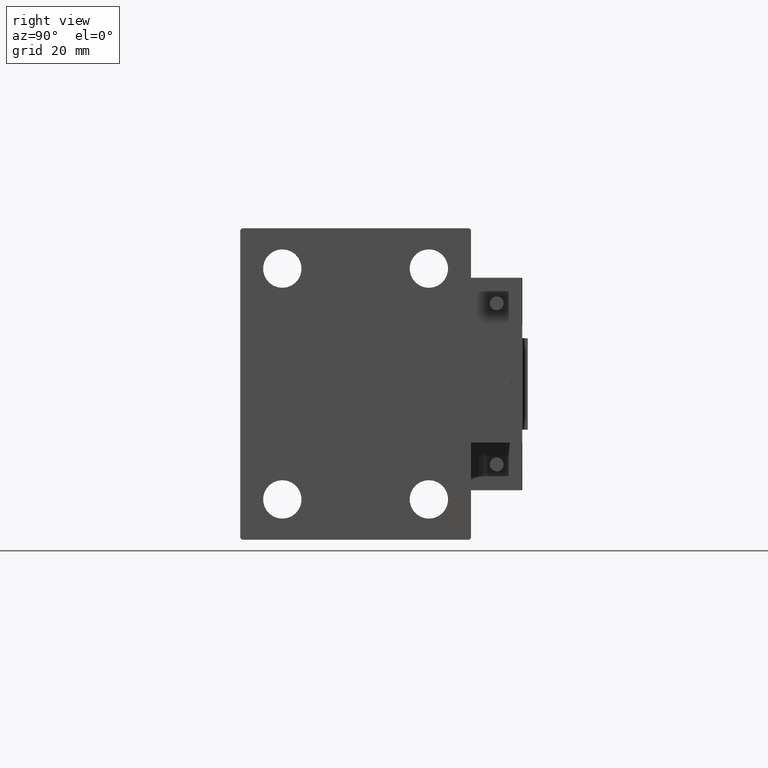
[diagram: clean part render]
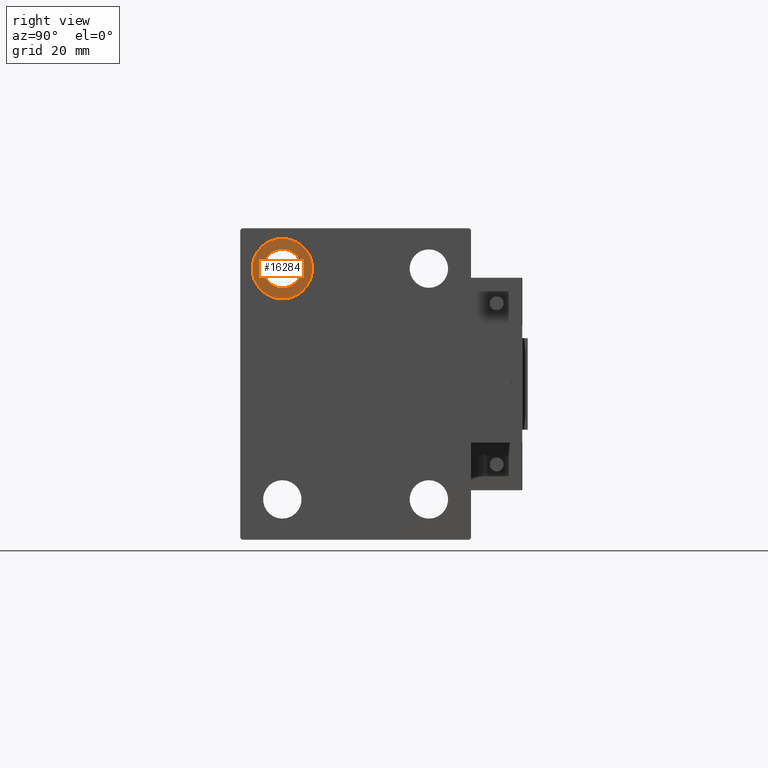
[diagram: same view with one face highlighted and labeled with its STEP entity id]
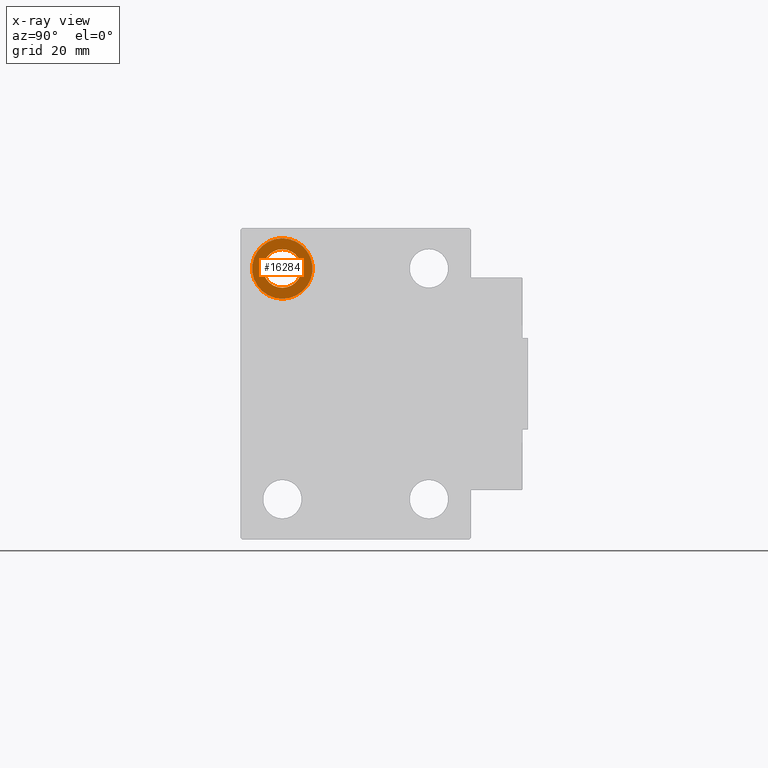
[diagram: x-ray of the same camera — body ghosted, the highlighted face saturated]
A machine part, right view. The second image highlights one B-rep face of the part: STEP entity #16284.
The next image is the same camera in x-ray: the body ghosted, the highlighted face saturated — about 0% of this face is hidden behind the body in this view.
In plain terms, the highlighted planar face has unit normal (1, 0, 0).
Its self-contained STEP definition (entity closure, byte-faithful):
#118 = DIRECTION ( 'NONE',  ( -1.000000000000000000, -0.000000000000000000, -0.000000000000000000 ) ) ;
#1399 = DIRECTION ( 'NONE',  ( 0.000000000000000000, 0.000000000000000000, 1.000000000000000000 ) ) ;
#1518 = CARTESIAN_POINT ( 'NONE',  ( 77.00000000000000000, -19.99999999999999645, 39.74999999999999289 ) ) ;
#4386 = DIRECTION ( 'NONE',  ( 0.000000000000000000, 0.000000000000000000, -1.000000000000000000 ) ) ;
#5449 = ORIENTED_EDGE ( 'NONE', *, *, #44275, .T. ) ;
#6470 = CARTESIAN_POINT ( 'NONE',  ( 77.00000000000000000, -19.99999999999999645, 31.50000000000000000 ) ) ;
#7465 = DIRECTION ( 'NONE',  ( 0.000000000000000000, 0.000000000000000000, 1.000000000000000000 ) ) ;
#9304 = CARTESIAN_POINT ( 'NONE',  ( 77.00000000000000000, -19.99999999999999645, 36.75000000000000000 ) ) ;
#9357 = ORIENTED_EDGE ( 'NONE', *, *, #27607, .T. ) ;
#10451 = DIRECTION ( 'NONE',  ( 1.000000000000000000, 0.000000000000000000, -0.000000000000000000 ) ) ;
#11066 = DIRECTION ( 'NONE',  ( 0.000000000000000000, 0.000000000000000000, -1.000000000000000000 ) ) ;
#12268 = AXIS2_PLACEMENT_3D ( 'NONE', #6470, #26813, #7465 ) ;
#13092 = CARTESIAN_POINT ( 'NONE',  ( 77.00000000000000000, -19.99999999999999645, 31.50000000000000000 ) ) ;
#13633 = CIRCLE ( 'NONE', #45389, 8.249999999999992895 ) ;
#13889 = CIRCLE ( 'NONE', #12268, 8.249999999999992895 ) ;
#15017 = DIRECTION ( 'NONE',  ( 0.000000000000000000, 0.000000000000000000, 1.000000000000000000 ) ) ;
#15833 = CARTESIAN_POINT ( 'NONE',  ( 77.00000000000000000, -19.99999999999999645, 31.50000000000000000 ) ) ;
#16284 = ADVANCED_FACE ( 'NONE', ( #37425, #18077 ), #29775, .T. ) ;
#18077 = FACE_BOUND ( 'NONE', #38397, .T. ) ;
#21002 = VERTEX_POINT ( 'NONE', #1518 ) ;
#21379 = EDGE_CURVE ( 'NONE', #28639, #21002, #13633, .T. ) ;
#22866 = CIRCLE ( 'NONE', #33458, 5.249999999999997335 ) ;
#23183 = ORIENTED_EDGE ( 'NONE', *, *, #21379, .F. ) ;
#25711 = AXIS2_PLACEMENT_3D ( 'NONE', #45325, #10451, #15017 ) ;
#26813 = DIRECTION ( 'NONE',  ( -1.000000000000000000, -0.000000000000000000, -0.000000000000000000 ) ) ;
#27398 = VERTEX_POINT ( 'NONE', #9304 ) ;
#27531 = DIRECTION ( 'NONE',  ( -1.000000000000000000, -0.000000000000000000, -0.000000000000000000 ) ) ;
#27607 = EDGE_CURVE ( 'NONE', #42960, #27398, #42218, .T. ) ;
#28639 = VERTEX_POINT ( 'NONE', #44498 ) ;
#29292 = AXIS2_PLACEMENT_3D ( 'NONE', #46193, #118, #11066 ) ;
#29775 = PLANE ( 'NONE',  #25711 ) ;
#30918 = EDGE_CURVE ( 'NONE', #21002, #28639, #13889, .T. ) ;
#33458 = AXIS2_PLACEMENT_3D ( 'NONE', #15833, #27531, #4386 ) ;
#36769 = DIRECTION ( 'NONE',  ( -1.000000000000000000, -0.000000000000000000, -0.000000000000000000 ) ) ;
#37425 = FACE_OUTER_BOUND ( 'NONE', #38367, .T. ) ;
#38367 = EDGE_LOOP ( 'NONE', ( #23183, #41494 ) ) ;
#38397 = EDGE_LOOP ( 'NONE', ( #5449, #9357 ) ) ;
#41494 = ORIENTED_EDGE ( 'NONE', *, *, #30918, .F. ) ;
#42218 = CIRCLE ( 'NONE', #29292, 5.249999999999997335 ) ;
#42960 = VERTEX_POINT ( 'NONE', #46685 ) ;
#44275 = EDGE_CURVE ( 'NONE', #27398, #42960, #22866, .T. ) ;
#44498 = CARTESIAN_POINT ( 'NONE',  ( 77.00000000000000000, -19.99999999999999645, 23.25000000000000355 ) ) ;
#45325 = CARTESIAN_POINT ( 'NONE',  ( 77.00000000000000000, 0.000000000000000000, 0.000000000000000000 ) ) ;
#45389 = AXIS2_PLACEMENT_3D ( 'NONE', #13092, #36769, #1399 ) ;
#46193 = CARTESIAN_POINT ( 'NONE',  ( 77.00000000000000000, -19.99999999999999645, 31.50000000000000000 ) ) ;
#46685 = CARTESIAN_POINT ( 'NONE',  ( 77.00000000000000000, -19.99999999999999645, 26.25000000000000355 ) ) ;